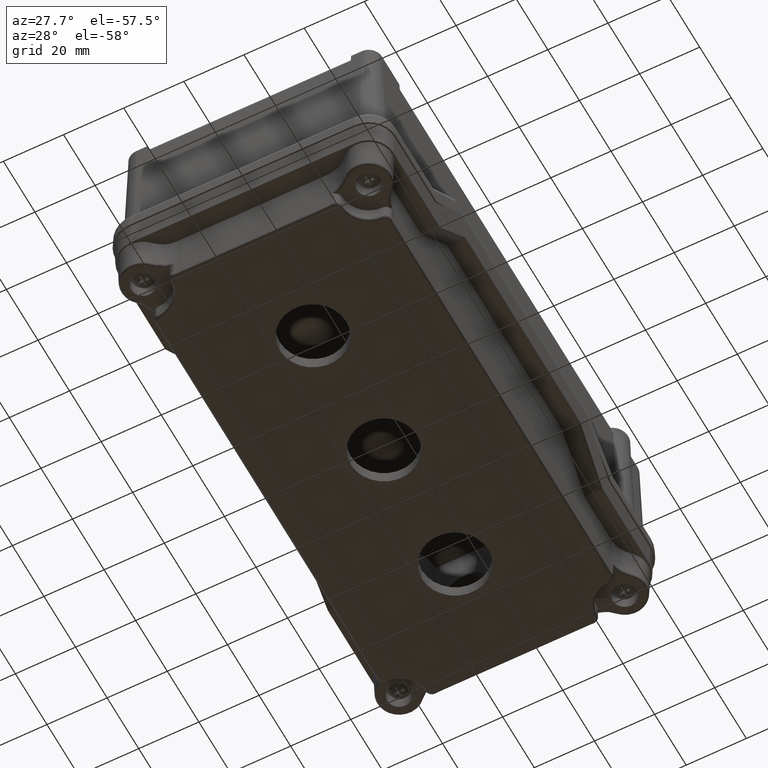
[diagram: clean part render]
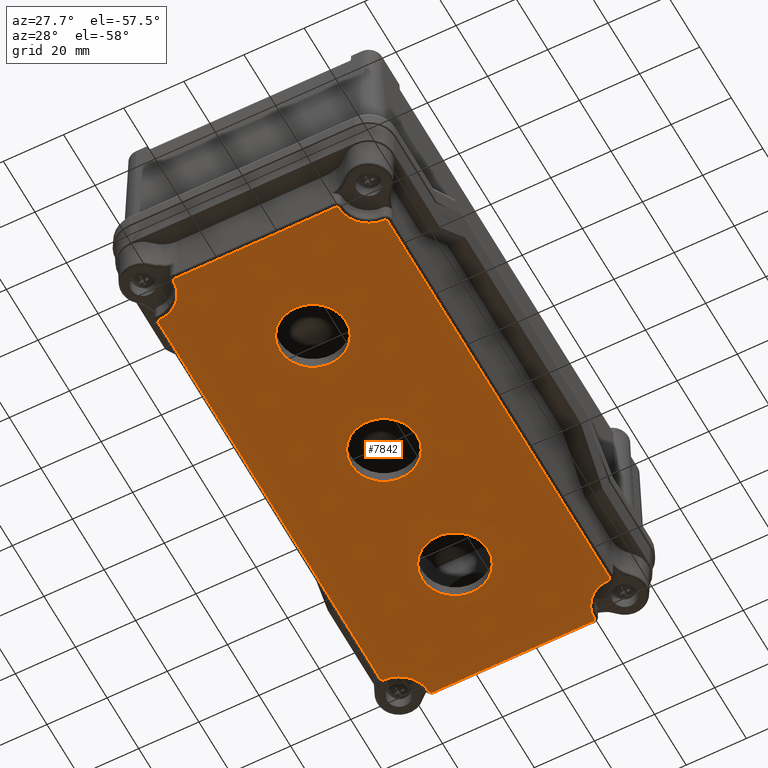
[diagram: same view with one face highlighted and labeled with its STEP entity id]
A machine part, auxiliary view. The second image highlights one B-rep face of the part: STEP entity #7842.
In plain terms, the highlighted planar face has unit normal (0, 0, -1).
Its self-contained STEP definition (entity closure, byte-faithful):
#5653=CARTESIAN_POINT('',(-0.336741534578417,82.261391683954855,40.500000000000000));
#5654=VERTEX_POINT('',#5653);
#5670=CARTESIAN_POINT('',(-0.336741534578376,-54.857181445621052,40.500000000000000));
#5671=VERTEX_POINT('',#5670);
#5679=CARTESIAN_POINT('',(-0.336741534578376,-54.857181445621052,40.500000000000000));
#5680=DIRECTION('',(0.0,1.0,0.0));
#5681=VECTOR('',#5680,137.118573129575910);
#5682=LINE('',#5679,#5681);
#5683=EDGE_CURVE('',#5671,#5654,#5682,.T.);
#5693=CARTESIAN_POINT('',(-0.416955998710065,83.585317413578068,40.500000000000000));
#5694=VERTEX_POINT('',#5693);
#5704=CARTESIAN_POINT('',(-11.302430309385489,82.261391683954855,40.500000000000000));
#5705=DIRECTION('',(0.0,0.0,1.0));
#5706=DIRECTION('',(0.998177473758042,0.060346755356137,0.0));
#5707=AXIS2_PLACEMENT_3D('',#5704,#5705,#5706);
#5708=CIRCLE('',#5707,10.965688774807212);
#5709=EDGE_CURVE('',#5654,#5694,#5708,.T.);
#5721=CARTESIAN_POINT('',(-0.416955998710137,-56.181107175244236,40.500000000000000));
#5722=VERTEX_POINT('',#5721);
#5730=CARTESIAN_POINT('',(-11.302430309385379,-54.857181445621052,40.500000000000000));
#5731=DIRECTION('',(0.0,0.0,1.0));
#5732=DIRECTION('',(0.998177473758042,-0.060346755356137,0.0));
#5733=AXIS2_PLACEMENT_3D('',#5730,#5731,#5732);
#5734=CIRCLE('',#5733,10.965688774807031);
#5735=EDGE_CURVE('',#5722,#5671,#5734,.T.);
#5845=CARTESIAN_POINT('',(0.549705304405497,84.705654910625157,40.500000000000000));
#5846=VERTEX_POINT('',#5845);
#5872=CARTESIAN_POINT('',(-0.416955998710074,83.585317413578082,40.500000000000000));
#5873=CARTESIAN_POINT('',(-0.424100666013615,83.644061715203790,40.500000000000000));
#5874=CARTESIAN_POINT('',(-0.426713791087788,83.723821598118107,40.500000000000007));
#5875=CARTESIAN_POINT('',(-0.412642234105211,83.882846399446962,40.500000000000000));
#5876=CARTESIAN_POINT('',(-0.370964023319106,84.056486297312887,40.500000000000021));
#5877=CARTESIAN_POINT('',(-0.288090193604461,84.217822768790683,40.500000000000014));
#5878=CARTESIAN_POINT('',(-0.195771681884898,84.346014033843161,40.500000000000014));
#5879=CARTESIAN_POINT('',(-0.087816085356499,84.463746715838312,40.500000000000021));
#5880=CARTESIAN_POINT('',(0.091499097256795,84.591502884102354,40.500000000000000));
#5881=CARTESIAN_POINT('',(0.312786726408055,84.680376326752182,40.500000000000007));
#5882=CARTESIAN_POINT('',(0.470830399737446,84.703552725720144,40.500000000000000));
#5883=CARTESIAN_POINT('',(0.549705304405499,84.705654910625157,40.500000000000000));
#5884=B_SPLINE_CURVE_WITH_KNOTS('',3,(#5872,#5873,#5874,#5875,#5876,#5877,#5878,#5879,#5880,#5881,#5882,#5883),.UNSPECIFIED.,.F.,.U.,(4,1,1,1,1,1,1,1,1,4),(0.0,0.017753155550305,0.023670874067073,0.047341748134146,0.071012622201219,0.076930340717988,0.094683496268292,0.118354370335365,0.142025244402438,0.165696118469512),.UNSPECIFIED.);
#5885=EDGE_CURVE('',#5694,#5846,#5884,.T.);
#6005=CARTESIAN_POINT('',(0.549705304405435,-57.301444672291339,40.500000000000000));
#6006=VERTEX_POINT('',#6005);
#6014=CARTESIAN_POINT('',(0.549705304405435,-57.301444672291346,40.500000000000000));
#6015=CARTESIAN_POINT('',(0.470830399736939,-57.299342487386326,40.500000000000000));
#6016=CARTESIAN_POINT('',(0.234067378005347,-57.264956661985778,40.500000000000043));
#6017=CARTESIAN_POINT('',(-0.015514652527938,-57.128727803565702,40.500000000000050));
#6018=CARTESIAN_POINT('',(-0.182661636983190,-56.956927240014394,40.500000000000071));
#6019=CARTESIAN_POINT('',(-0.278714694588640,-56.831572478084659,40.500000000000050));
#6020=CARTESIAN_POINT('',(-0.338759194122584,-56.715127209668523,40.500000000000085));
#6021=CARTESIAN_POINT('',(-0.371848311757467,-56.621585759763065,40.500000000000071));
#6022=CARTESIAN_POINT('',(-0.396031503747447,-56.546320919170718,40.500000000000064));
#6023=CARTESIAN_POINT('',(-0.426749287938801,-56.400417810618634,40.500000000000043));
#6024=CARTESIAN_POINT('',(-0.426482221781583,-56.259432910745637,40.500000000000000));
#6025=CARTESIAN_POINT('',(-0.416955998710141,-56.181107175244257,40.500000000000000));
#6026=B_SPLINE_CURVE_WITH_KNOTS('',3,(#6014,#6015,#6016,#6017,#6018,#6019,#6020,#6021,#6022,#6023,#6024,#6025),.UNSPECIFIED.,.F.,.U.,(4,1,1,1,1,1,1,1,1,4),(0.0,0.023670874067206,0.071012622201618,0.082848059235221,0.094683496268824,0.118354370336030,0.121313229594431,0.124272088852832,0.142025244403236,0.165696118470443),.UNSPECIFIED.);
#6027=EDGE_CURVE('',#6006,#5722,#6026,.T.);
#6037=CARTESIAN_POINT('',(10.279728734740486,94.435678340960081,40.500000000000000));
#6038=VERTEX_POINT('',#6037);
#6056=CARTESIAN_POINT('',(0.283278526198740,94.702105119166902,40.500000000000000));
#6057=DIRECTION('',(0.0,0.0,1.0));
#6058=DIRECTION('',(0.707106781186545,-0.707106781186550,0.0));
#6059=AXIS2_PLACEMENT_3D('',#6056,#6057,#6058);
#6060=CIRCLE('',#6059,9.999999999999998);
#6061=EDGE_CURVE('',#5846,#6038,#6060,.T.);
#6073=CARTESIAN_POINT('',(10.279728734740491,-67.031468102626235,40.500000000000000));
#6074=VERTEX_POINT('',#6073);
#6082=CARTESIAN_POINT('',(0.283278526198749,-67.297894880833098,40.500000000000000));
#6083=DIRECTION('',(0.0,0.0,1.0));
#6084=DIRECTION('',(0.707106781186548,0.707106781186547,0.0));
#6085=AXIS2_PLACEMENT_3D('',#6082,#6083,#6084);
#6086=CIRCLE('',#6085,10.0);
#6087=EDGE_CURVE('',#6074,#6006,#6086,.T.);
#6181=CARTESIAN_POINT('',(11.400066231787576,95.402339644075767,40.500000000000000));
#6182=VERTEX_POINT('',#6181);
#6204=CARTESIAN_POINT('',(10.279728734740488,94.435678340960180,40.500000000000000));
#6205=CARTESIAN_POINT('',(10.281830909904583,94.514552880144876,40.500000000000000));
#6206=CARTESIAN_POINT('',(10.305144614017456,94.673781576509441,40.500000000000007));
#6207=CARTESIAN_POINT('',(10.394677491241072,94.895369657003812,40.499999999999993));
#6208=CARTESIAN_POINT('',(10.534658012564494,95.091095873756444,40.500000000000014));
#6209=CARTESIAN_POINT('',(10.716190749017962,95.247337979795091,40.499999999999993));
#6210=CARTESIAN_POINT('',(10.930373026011992,95.356949271031837,40.500000000000000));
#6211=CARTESIAN_POINT('',(11.162067421587393,95.412214050604334,40.500000000000007));
#6212=CARTESIAN_POINT('',(11.321740859225306,95.411865823005400,40.500000000000000));
#6213=CARTESIAN_POINT('',(11.400066231787580,95.402339644075752,40.500000000000000));
#6214=B_SPLINE_CURVE_WITH_KNOTS('',3,(#6204,#6205,#6206,#6207,#6208,#6209,#6210,#6211,#6212,#6213),.UNSPECIFIED.,.F.,.U.,(4,1,1,1,1,1,1,4),(0.0,0.023670764383130,0.047341528766261,0.071012293149391,0.094683057532522,0.118353821915652,0.142024586298782,0.165695350681913),.UNSPECIFIED.);
#6215=EDGE_CURVE('',#6038,#6182,#6214,.T.);
#6344=CARTESIAN_POINT('',(11.400066231787580,-67.998129405741878,40.500000000000000));
#6345=VERTEX_POINT('',#6344);
#6353=CARTESIAN_POINT('',(11.400066231787580,-67.998129405741878,40.500000000000000));
#6354=CARTESIAN_POINT('',(11.321740859224747,-68.007655584671582,40.500000000000000));
#6355=CARTESIAN_POINT('',(11.162106605326496,-68.008020166335768,40.499999999999922));
#6356=CARTESIAN_POINT('',(10.930107724856716,-67.952456404061508,40.499999999999922));
#6357=CARTESIAN_POINT('',(10.770062794722074,-67.870769972386853,40.499999999999858));
#6358=CARTESIAN_POINT('',(10.672792022783995,-67.801037493901646,40.499999999999858));
#6359=CARTESIAN_POINT('',(10.580409168530034,-67.726085420340510,40.499999999999858));
#6360=CARTESIAN_POINT('',(10.499765532850299,-67.637995331351405,40.499999999999893));
#6361=CARTESIAN_POINT('',(10.432904882546790,-67.538566747739836,40.499999999999893));
#6362=CARTESIAN_POINT('',(10.372459617864706,-67.435850908178679,40.499999999999908));
#6363=CARTESIAN_POINT('',(10.305251925400693,-67.269745487110171,40.499999999999929));
#6364=CARTESIAN_POINT('',(10.281830909904606,-67.110342641811570,40.500000000000000));
#6365=CARTESIAN_POINT('',(10.279728734740496,-67.031468102626306,40.500000000000000));
#6366=B_SPLINE_CURVE_WITH_KNOTS('',3,(#6353,#6354,#6355,#6356,#6357,#6358,#6359,#6360,#6361,#6362,#6363,#6364,#6365),.UNSPECIFIED.,.F.,.U.,(4,1,1,1,1,1,1,1,1,1,4),(0.0,0.023670764383299,0.047341528766599,0.071012293149898,0.076929984245723,0.082847675341548,0.106518439724848,0.112436130820672,0.118353821916497,0.142024586299797,0.165695350683096),.UNSPECIFIED.);
#6367=EDGE_CURVE('',#6345,#6074,#6366,.T.);
#6377=CARTESIAN_POINT('',(12.723991961410794,95.322125179943953,40.500000000000000));
#6378=VERTEX_POINT('',#6377);
#6388=CARTESIAN_POINT('',(12.723991961410796,106.287813954751130,40.500000000000000));
#6389=DIRECTION('',(0.0,0.0,1.0));
#6390=DIRECTION('',(-0.060346755356137,-0.998177473758042,0.0));
#6391=AXIS2_PLACEMENT_3D('',#6388,#6389,#6390);
#6392=CIRCLE('',#6391,10.965688774807161);
#6393=EDGE_CURVE('',#6182,#6378,#6392,.T.);
#6405=CARTESIAN_POINT('',(12.723991961410801,-67.917914941610093,40.500000000000000));
#6406=VERTEX_POINT('',#6405);
#6414=CARTESIAN_POINT('',(12.723991961410805,-78.883603716417213,40.500000000000000));
#6415=DIRECTION('',(0.0,0.0,1.0));
#6416=DIRECTION('',(-0.060346755356138,0.998177473758042,0.0));
#6417=AXIS2_PLACEMENT_3D('',#6414,#6415,#6416);
#6418=CIRCLE('',#6417,10.965688774807122);
#6419=EDGE_CURVE('',#6406,#6345,#6418,.T.);
#6437=CARTESIAN_POINT('',(62.842565090986717,95.322125179944024,40.500000000000000));
#6438=VERTEX_POINT('',#6437);
#6453=CARTESIAN_POINT('',(12.723991961410794,95.322125179943953,40.500000000000000));
#6454=DIRECTION('',(1.0,0.0,0.0));
#6455=VECTOR('',#6454,50.118573129575921);
#6456=LINE('',#6453,#6455);
#6457=EDGE_CURVE('',#6378,#6438,#6456,.T.);
#6469=CARTESIAN_POINT('',(62.842565090986710,-67.917914941610206,40.500000000000000));
#6470=VERTEX_POINT('',#6469);
#6478=CARTESIAN_POINT('',(62.842565090986710,-67.917914941610206,40.500000000000000));
#6479=DIRECTION('',(-1.0,0.0,0.0));
#6480=VECTOR('',#6479,50.118573129575907);
#6481=LINE('',#6478,#6480);
#6482=EDGE_CURVE('',#6470,#6406,#6481,.T.);
#6499=CARTESIAN_POINT('',(64.166490820609908,95.402339644075752,40.500000000000000));
#6500=VERTEX_POINT('',#6499);
#6510=CARTESIAN_POINT('',(62.842565090986717,106.287813954751130,40.500000000000000));
#6511=DIRECTION('',(0.0,0.0,1.0));
#6512=DIRECTION('',(0.060346755356137,-0.998177473758042,0.0));
#6513=AXIS2_PLACEMENT_3D('',#6510,#6511,#6512);
#6514=CIRCLE('',#6513,10.965688774807163);
#6515=EDGE_CURVE('',#6438,#6500,#6514,.T.);
#6527=CARTESIAN_POINT('',(64.166490820609951,-67.998129405742077,40.500000000000000));
#6528=VERTEX_POINT('',#6527);
#6536=CARTESIAN_POINT('',(62.842565090986710,-78.883603716417312,40.500000000000000));
#6537=DIRECTION('',(0.0,0.0,1.0));
#6538=DIRECTION('',(0.060346755356140,0.998177473758042,0.0));
#6539=AXIS2_PLACEMENT_3D('',#6536,#6537,#6538);
#6540=CIRCLE('',#6539,10.965688774807038);
#6541=EDGE_CURVE('',#6528,#6470,#6540,.T.);
#6635=CARTESIAN_POINT('',(65.286828317657026,94.435678340960166,40.500000000000000));
#6636=VERTEX_POINT('',#6635);
#6660=CARTESIAN_POINT('',(64.166490820609937,95.402339644075752,40.500000000000000));
#6661=CARTESIAN_POINT('',(64.244816556110891,95.411865867147142,40.500000000000000));
#6662=CARTESIAN_POINT('',(64.405747048237387,95.412201445162466,40.499999999999993));
#6663=CARTESIAN_POINT('',(64.638062375519752,95.356096565982241,40.499999999999979));
#6664=CARTESIAN_POINT('',(64.852154555397192,95.246243372427202,40.499999999999993));
#6665=CARTESIAN_POINT('',(65.033252119011635,95.089480238625299,40.500000000000000));
#6666=CARTESIAN_POINT('',(65.172995707674374,94.893637968589204,40.499999999999986));
#6667=CARTESIAN_POINT('',(65.261613944455618,94.672540409491873,40.500000000000000));
#6668=CARTESIAN_POINT('',(65.284726132752013,94.514553245628193,40.500000000000000));
#6669=CARTESIAN_POINT('',(65.286828317657026,94.435678340960152,40.500000000000000));
#6670=B_SPLINE_CURVE_WITH_KNOTS('',3,(#6660,#6661,#6662,#6663,#6664,#6665,#6666,#6667,#6668,#6669),.UNSPECIFIED.,.F.,.U.,(4,1,1,1,1,1,1,4),(0.0,0.023670874067073,0.047341748134147,0.071012622201220,0.094683496268293,0.118354370335366,0.142025244402440,0.165696118469513),.UNSPECIFIED.);
#6671=EDGE_CURVE('',#6500,#6636,#6670,.T.);
#6791=CARTESIAN_POINT('',(65.286828317657054,-67.031468102626505,40.500000000000000));
#6792=VERTEX_POINT('',#6791);
#6800=CARTESIAN_POINT('',(65.286828317657054,-67.031468102626491,40.500000000000000));
#6801=CARTESIAN_POINT('',(65.284726132752027,-67.110343007294972,40.500000000000000));
#6802=CARTESIAN_POINT('',(65.250341075509141,-67.347104648975147,40.500000000000021));
#6803=CARTESIAN_POINT('',(65.114112660825185,-67.596686286916253,40.500000000000028));
#6804=CARTESIAN_POINT('',(64.942312332366853,-67.763833070765060,40.500000000000043));
#6805=CARTESIAN_POINT('',(64.816957597348122,-67.859886106566094,40.500000000000043));
#6806=CARTESIAN_POINT('',(64.700512177144603,-67.919930909974553,40.500000000000043));
#6807=CARTESIAN_POINT('',(64.606970682334378,-67.953020112342386,40.500000000000036));
#6808=CARTESIAN_POINT('',(64.531705783169187,-67.977203377436226,40.500000000000036));
#6809=CARTESIAN_POINT('',(64.385802651295748,-68.007921251241925,40.500000000000028));
#6810=CARTESIAN_POINT('',(64.244816556111360,-68.007655628813509,40.500000000000000));
#6811=CARTESIAN_POINT('',(64.166490820609980,-67.998129405742063,40.500000000000000));
#6812=B_SPLINE_CURVE_WITH_KNOTS('',3,(#6800,#6801,#6802,#6803,#6804,#6805,#6806,#6807,#6808,#6809,#6810,#6811),.UNSPECIFIED.,.F.,.U.,(4,1,1,1,1,1,1,1,1,4),(0.0,0.023670874067206,0.071012622201619,0.082848059235222,0.094683496268826,0.118354370336032,0.121313229594433,0.124272088852834,0.142025244403238,0.165696118470445),.UNSPECIFIED.);
#6813=EDGE_CURVE('',#6792,#6528,#6812,.T.);
#6823=CARTESIAN_POINT('',(75.016851747992007,84.705654910625157,40.500000000000000));
#6824=VERTEX_POINT('',#6823);
#6842=CARTESIAN_POINT('',(75.283278526198771,94.702105119166902,40.500000000000000));
#6843=DIRECTION('',(0.0,0.0,1.0));
#6844=DIRECTION('',(-0.707106781186549,-0.707106781186546,0.0));
#6845=AXIS2_PLACEMENT_3D('',#6842,#6843,#6844);
#6846=CIRCLE('',#6845,10.0);
#6847=EDGE_CURVE('',#6636,#6824,#6846,.T.);
#6859=CARTESIAN_POINT('',(75.016851747992177,-57.301444672291318,40.500000000000000));
#6860=VERTEX_POINT('',#6859);
#6868=CARTESIAN_POINT('',(75.283278526198799,-67.297894880833070,40.500000000000000));
#6869=DIRECTION('',(0.0,0.0,1.0));
#6870=DIRECTION('',(-0.707106781186543,0.707106781186552,0.0));
#6871=AXIS2_PLACEMENT_3D('',#6868,#6869,#6870);
#6872=CIRCLE('',#6871,9.999999999999998);
#6873=EDGE_CURVE('',#6860,#6792,#6872,.T.);
#6983=CARTESIAN_POINT('',(75.983513051107707,83.585317413578068,40.500000000000000));
#6984=VERTEX_POINT('',#6983);
#7008=CARTESIAN_POINT('',(75.016851747992106,84.705654910625142,40.500000000000000));
#7009=CARTESIAN_POINT('',(75.076007652380625,84.704078279252073,40.500000000000000));
#7010=CARTESIAN_POINT('',(75.155281451880839,84.694941120274578,40.499999999999986));
#7011=CARTESIAN_POINT('',(75.310521483537016,84.657682292869524,40.499999999999964));
#7012=CARTESIAN_POINT('',(75.476175488706687,84.591015214356020,40.499999999999972));
#7013=CARTESIAN_POINT('',(75.623653159712774,84.485447851164636,40.499999999999964));
#7014=CARTESIAN_POINT('',(75.736986644798435,84.375372146846729,40.499999999999964));
#7015=CARTESIAN_POINT('',(75.837664892906176,84.251389219780009,40.499999999999972));
#7016=CARTESIAN_POINT('',(75.937843864615573,84.055296656582001,40.499999999999979));
#7017=CARTESIAN_POINT('',(75.993328946788182,83.823384063263745,40.499999999999986));
#7018=CARTESIAN_POINT('',(75.993039230037340,83.663642786140343,40.500000000000000));
#7019=CARTESIAN_POINT('',(75.983513051107693,83.585317413578068,40.500000000000000));
#7020=B_SPLINE_CURVE_WITH_KNOTS('',3,(#7008,#7009,#7010,#7011,#7012,#7013,#7014,#7015,#7016,#7017,#7018,#7019),.UNSPECIFIED.,.F.,.U.,(4,1,1,1,1,1,1,1,1,4),(0.0,0.017753073287348,0.023670764383131,0.047341528766262,0.071012293149392,0.076929984245175,0.094683057532523,0.118353821915654,0.142024586298785,0.165695350681915),.UNSPECIFIED.);
#7021=EDGE_CURVE('',#6824,#6984,#7020,.T.);
#7150=CARTESIAN_POINT('',(75.983513051107835,-56.181107175244229,40.500000000000000));
#7151=VERTEX_POINT('',#7150);
#7159=CARTESIAN_POINT('',(75.983513051107849,-56.181107175244229,40.500000000000000));
#7160=CARTESIAN_POINT('',(75.993039230037567,-56.259432547807066,40.500000000000000));
#7161=CARTESIAN_POINT('',(75.993404576145707,-56.419065417874336,40.500000000000000));
#7162=CARTESIAN_POINT('',(75.937841128325616,-56.651063882392435,40.500000000000000));
#7163=CARTESIAN_POINT('',(75.856155102495663,-56.811108238369030,40.499999999999993));
#7164=CARTESIAN_POINT('',(75.786422695779009,-56.908378933576302,40.500000000000000));
#7165=CARTESIAN_POINT('',(75.711470640226182,-57.000761774413277,40.500000000000007));
#7166=CARTESIAN_POINT('',(75.623380451503039,-57.081405619762812,40.499999999999993));
#7167=CARTESIAN_POINT('',(75.523951842767048,-57.148266330766781,40.499999999999986));
#7168=CARTESIAN_POINT('',(75.421235746799539,-57.208711974927624,40.499999999999993));
#7169=CARTESIAN_POINT('',(75.255130126333810,-57.275919948726028,40.499999999999993));
#7170=CARTESIAN_POINT('',(75.095726287177499,-57.299342497127206,40.500000000000000));
#7171=CARTESIAN_POINT('',(75.016851747992234,-57.301444672291318,40.500000000000000));
#7172=B_SPLINE_CURVE_WITH_KNOTS('',3,(#7159,#7160,#7161,#7162,#7163,#7164,#7165,#7166,#7167,#7168,#7169,#7170,#7171),.UNSPECIFIED.,.F.,.U.,(4,1,1,1,1,1,1,1,1,1,4),(0.0,0.023670764383300,0.047341528766600,0.071012293149899,0.076929984245724,0.082847675341549,0.106518439724849,0.112436130820674,0.118353821916499,0.142024586299799,0.165695350683099),.UNSPECIFIED.);
#7173=EDGE_CURVE('',#7151,#6860,#7172,.T.);
#7183=CARTESIAN_POINT('',(75.903298586975893,82.261391683954841,40.500000000000000));
#7184=VERTEX_POINT('',#7183);
#7194=CARTESIAN_POINT('',(86.868987361783013,82.261391683954855,40.500000000000000));
#7195=DIRECTION('',(0.0,0.0,1.000000000000000));
#7196=DIRECTION('',(-0.998177473758042,0.060346755356136,0.0));
#7197=AXIS2_PLACEMENT_3D('',#7194,#7195,#7196);
#7198=CIRCLE('',#7197,10.965688774807118);
#7199=EDGE_CURVE('',#6984,#7184,#7198,.T.);
#7211=CARTESIAN_POINT('',(75.903298586976035,-54.857181445620952,40.500000000000000));
#7212=VERTEX_POINT('',#7211);
#7220=CARTESIAN_POINT('',(86.868987361783041,-54.857181445620959,40.500000000000000));
#7221=DIRECTION('',(0.0,0.0,1.0));
#7222=DIRECTION('',(-0.998177473758042,-0.060346755356140,0.0));
#7223=AXIS2_PLACEMENT_3D('',#7220,#7221,#7222);
#7224=CIRCLE('',#7223,10.965688774807003);
#7225=EDGE_CURVE('',#7212,#7151,#7224,.T.);
#7244=CARTESIAN_POINT('',(75.903298586975893,82.261391683954841,40.500000000000000));
#7245=DIRECTION('',(0.0,-1.0,0.0));
#7246=VECTOR('',#7245,137.118573129575790);
#7247=LINE('',#7244,#7246);
#7248=EDGE_CURVE('',#7184,#7212,#7247,.T.);
#7778=CARTESIAN_POINT('',(37.783278526198764,13.702105119166925,40.500000000000000));
#7779=DIRECTION('',(0.0,0.0,1.0));
#7780=DIRECTION('',(1.0,0.0,0.0));
#7781=AXIS2_PLACEMENT_3D('',#7778,#7779,#7780);
#7782=PLANE('',#7781);
#7783=ORIENTED_EDGE('',*,*,#5683,.F.);
#7784=ORIENTED_EDGE('',*,*,#5735,.F.);
#7785=ORIENTED_EDGE('',*,*,#6027,.F.);
#7786=ORIENTED_EDGE('',*,*,#6087,.F.);
#7787=ORIENTED_EDGE('',*,*,#6367,.F.);
#7788=ORIENTED_EDGE('',*,*,#6419,.F.);
#7789=ORIENTED_EDGE('',*,*,#6482,.F.);
#7790=ORIENTED_EDGE('',*,*,#6541,.F.);
#7791=ORIENTED_EDGE('',*,*,#6813,.F.);
#7792=ORIENTED_EDGE('',*,*,#6873,.F.);
#7793=ORIENTED_EDGE('',*,*,#7173,.F.);
#7794=ORIENTED_EDGE('',*,*,#7225,.F.);
#7795=ORIENTED_EDGE('',*,*,#7248,.F.);
#7796=ORIENTED_EDGE('',*,*,#7199,.F.);
#7797=ORIENTED_EDGE('',*,*,#7021,.F.);
#7798=ORIENTED_EDGE('',*,*,#6847,.F.);
#7799=ORIENTED_EDGE('',*,*,#6671,.F.);
#7800=ORIENTED_EDGE('',*,*,#6515,.F.);
#7801=ORIENTED_EDGE('',*,*,#6457,.F.);
#7802=ORIENTED_EDGE('',*,*,#6393,.F.);
#7803=ORIENTED_EDGE('',*,*,#6215,.F.);
#7804=ORIENTED_EDGE('',*,*,#6061,.F.);
#7805=ORIENTED_EDGE('',*,*,#5885,.F.);
#7806=ORIENTED_EDGE('',*,*,#5709,.F.);
#7807=EDGE_LOOP('',(#7783,#7784,#7785,#7786,#7787,#7788,#7789,#7790,#7791,#7792,#7793,#7794,#7795,#7796,#7797,#7798,#7799,#7800,#7801,#7802,#7803,#7804,#7805,#7806));
#7808=FACE_OUTER_BOUND('',#7807,.T.);
#7809=CARTESIAN_POINT('',(48.783278526198771,58.702313954751098,40.500000000000000));
#7810=VERTEX_POINT('',#7809);
#7811=CARTESIAN_POINT('',(37.783278526198778,58.702313954751098,40.500000000000000));
#7812=DIRECTION('',(0.0,0.0,-1.0));
#7813=DIRECTION('',(-1.0,0.0,0.0));
#7814=AXIS2_PLACEMENT_3D('',#7811,#7812,#7813);
#7815=CIRCLE('',#7814,11.0);
#7816=EDGE_CURVE('',#7810,#7810,#7815,.T.);
#7817=ORIENTED_EDGE('',*,*,#7816,.T.);
#7818=EDGE_LOOP('',(#7817));
#7819=FACE_BOUND('',#7818,.T.);
#7820=CARTESIAN_POINT('',(48.783278526198814,13.702313954751098,40.500000000000000));
#7821=VERTEX_POINT('',#7820);
#7822=CARTESIAN_POINT('',(37.783278526198806,13.702313954751094,40.500000000000000));
#7823=DIRECTION('',(0.0,0.0,-1.0));
#7824=DIRECTION('',(-1.0,0.0,0.0));
#7825=AXIS2_PLACEMENT_3D('',#7822,#7823,#7824);
#7826=CIRCLE('',#7825,11.0);
#7827=EDGE_CURVE('',#7821,#7821,#7826,.T.);
#7828=ORIENTED_EDGE('',*,*,#7827,.T.);
#7829=EDGE_LOOP('',(#7828));
#7830=FACE_BOUND('',#7829,.T.);
#7831=CARTESIAN_POINT('',(48.783278526198821,-31.297686045248902,40.500000000000000));
#7832=VERTEX_POINT('',#7831);
#7833=CARTESIAN_POINT('',(37.783278526198821,-31.297686045248902,40.500000000000000));
#7834=DIRECTION('',(0.0,0.0,-1.0));
#7835=DIRECTION('',(-1.0,0.0,0.0));
#7836=AXIS2_PLACEMENT_3D('',#7833,#7834,#7835);
#7837=CIRCLE('',#7836,11.0);
#7838=EDGE_CURVE('',#7832,#7832,#7837,.T.);
#7839=ORIENTED_EDGE('',*,*,#7838,.T.);
#7840=EDGE_LOOP('',(#7839));
#7841=FACE_BOUND('',#7840,.T.);
#7842=ADVANCED_FACE('',(#7808,#7819,#7830,#7841),#7782,.T.);